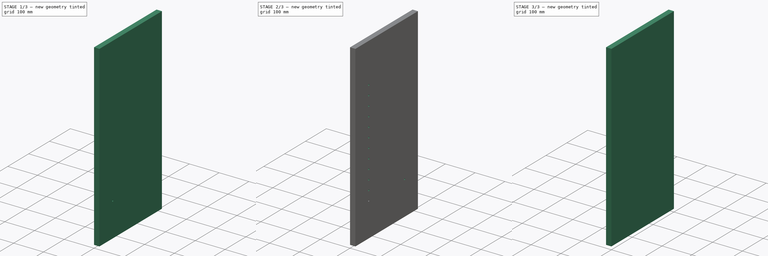
[diagram: build sequence overview — one tinted view per stage of 3, left to right]
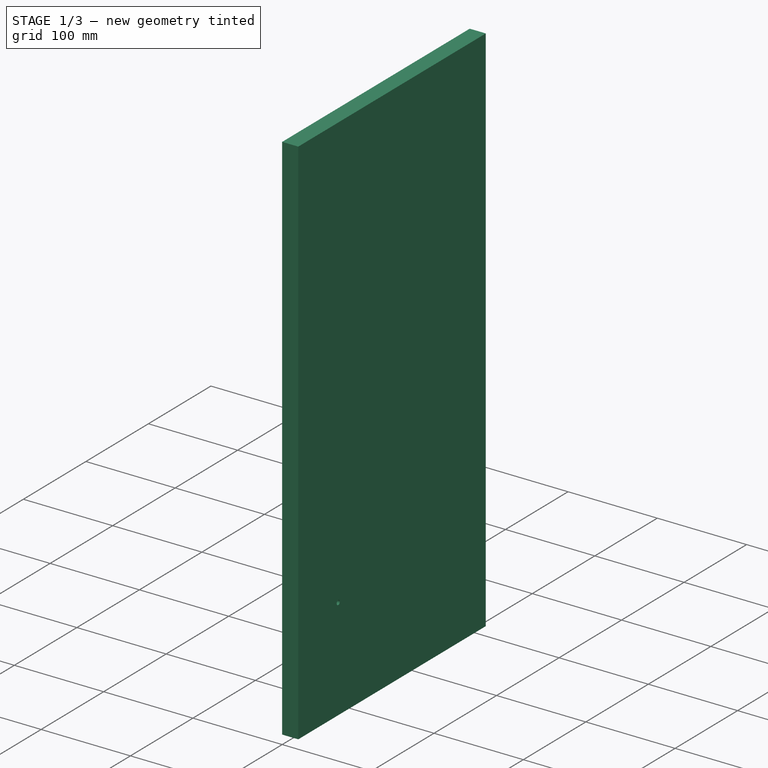
[diagram: stage 1 of 3 — iso view after this stage's code; geometry added in this stage tinted green]
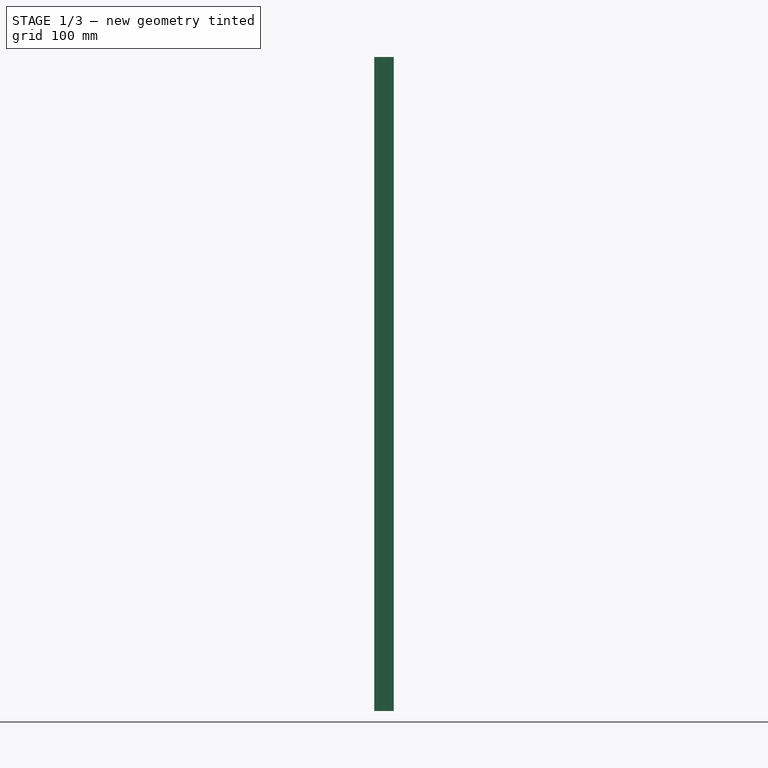
[diagram: stage 1 of 3 — front view after this stage's code; geometry added in this stage tinted green]
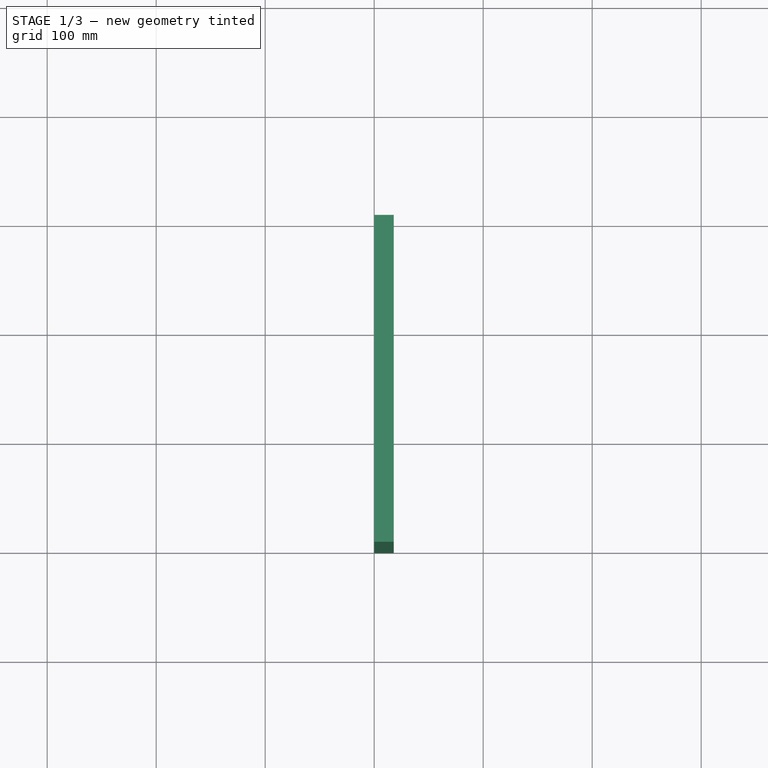
[diagram: stage 1 of 3 — top view after this stage's code; geometry added in this stage tinted green]
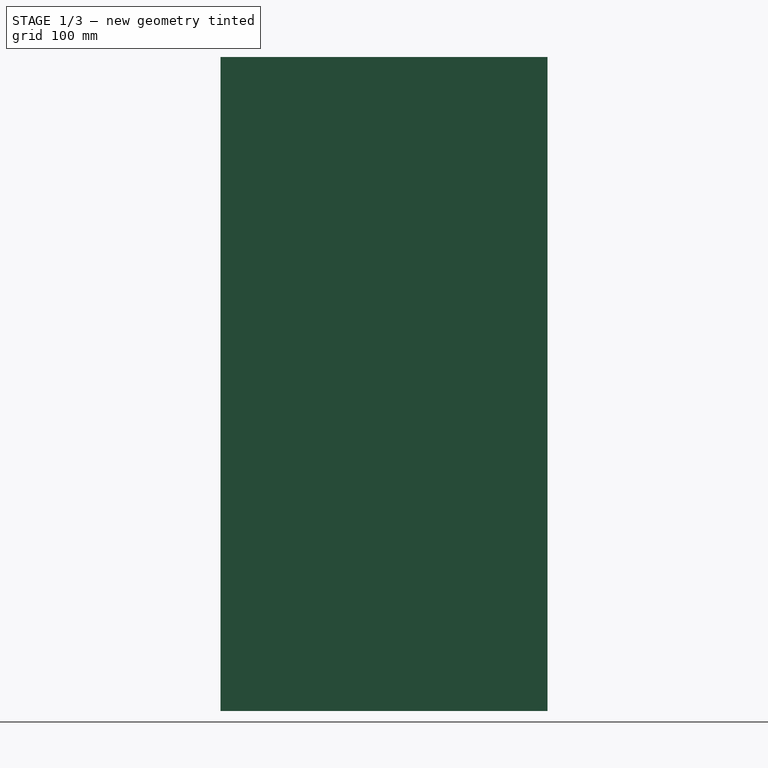
[diagram: stage 1 of 3 — right view after this stage's code; geometry added in this stage tinted green]
FCSTD DOCUMENT  (FreeCAD 1.1R20260325 (Git shallow))
Label: msf083
License: All rights reserved
LicenseURL: https://en.wikipedia.org/wiki/All_rights_reserved
objects: Sketcher::SketchObject×3, App::Point×2, PartDesign::Hole×2, PartDesign::LinearPattern×2, PartDesign::Pad×1, PartDesign::Body×1, Part::FeaturePython×1, App::Part×1, App::VarSet×1
note: 21 computed .brp shape members not serialized (recipe doc carries the construction recipe); baked Part::Feature solids carry a one-line shape summary decoded from their .brp

FEATURE [App::Point] Origin001
  Role = Origin
FEATURE [App::Point] Origin003
  Role = Origin
FEATURE [Sketcher::SketchObject] Sketch  label="Pattern, panel2pad"
  ArcFitTolerance = 1e-06
  AttachmentSupport = -> [YZ_Plane001]
  ExternalTypes = [0]
  FullyConstrained = true
  MakeInternals = false
  MapMode = 5
  Placement = pos=(0,0,0) rot=(0.57735,0.57735,0.57735;2.0944rad)
  _ExternalGeoVersion = 0
  expr: .Constraints.SizeX = <<settings_sides>>.Size_Y
  expr: .Constraints.SizeY = <<settings_sides>>.Size_Z
  sketch-geometry (4):
    g0: LineSegment StartX=0 StartY=600 StartZ=0 EndX=300 EndY=600 EndZ=0
    g1: LineSegment StartX=300 StartY=600 StartZ=0 EndX=300 EndY=0 EndZ=0
    g2: LineSegment StartX=300 StartY=0 StartZ=0 EndX=0 EndY=0 EndZ=0
    g3: LineSegment StartX=0 StartY=0 StartZ=0 EndX=0 EndY=600 EndZ=0
  constraints (11):
    c: Coincident(g0,g1)
    c: Coincident(g1,g2)
    c: Coincident(g2,g3)
    c: Coincident(g3,g0)
    c: Horizontal(g0)
    c: Horizontal(g2)
    c: Vertical(g1)
    c: Vertical(g3)
    c: Coincident(g2,g-1)
    c: DistanceX(g0,g0) = 300  'SizeX'
    c: DistanceY(g3,g3) = 600  'SizeY'
FEATURE [PartDesign::Pad] Pad  label="panel2pad"
  Direction = (1,0,0)
  Length = 18
  Length2 = 10
  Placement = pos=(0,0,0) rot=(1,1,1;2.0944rad)
  Profile = -> Sketch
  Refine = true
  SideType = 0
  Suppressed = false
  Type = 0
  Type2 = 0
  expr: Length = <<settings_sides>>.Size_X
FEATURE [Sketcher::SketchObject] Sketch001
  ArcFitTolerance = 1e-06
  AttachmentSupport = -> [Pad]
  ExternalTypes = [0]
  FullyConstrained = true
  MakeInternals = false
  MapMode = 5
  Placement = pos=(18,-4e-15,2e-15) rot=(0.57735,0.57735,0.57735;2.0944rad)
  _ExternalGeoVersion = 0
  expr: Constraints[0] = <<settings_sides>>.Hole_offset_front
  expr: Constraints[1] = <<settings_sides>>.Hole_offset_bottom
  sketch-geometry (1):
    g0: Circle CenterX=64 CenterY=114 CenterZ=0 NormalX=0 NormalY=0 NormalZ=1 AngleXU=0 Radius=2.5
  constraints (3):
    c: DistanceX(g-1,g0) = 64
    c: DistanceY(g-1,g0) = 114
    c: Diameter(g0) = 5
FEATURE [PartDesign::Hole] Hole
  BaseFeature = -> Pad
  BaseProfileType = 7
  CustomThreadClearance = 0
  Depth = 8
  DepthType = 0
  Diameter = 5
  DrillForDepth = false
  DrillPoint = 0
  DrillPointAngle = 118
  HoleCutCountersinkAngle = 90
  HoleCutCustomValues = false
  HoleCutDepth = 0
  HoleCutDiameter = 10.2
  HoleCutType = 0
  ModelThread = false
  Placement = pos=(0,0,0) rot=(1,1,1;2.0944rad)
  Profile = -> Sketch001
  Refine = true
  Suppressed = false
  Tapered = false
  TaperedAngle = 90
  ThreadClass = 0
  ThreadDepth = 8
  ThreadDepthType = 0
  ThreadDiameter = 5
  ThreadDirection = 0
  ThreadFit = 0
  ThreadSize = 0
  ThreadType = 0
  Threaded = false
  UseCustomThreadClearance = false
  expr: Depth = <<settings_sides>>.Hole_depth
  expr: Diameter = <<settings_sides>>.Hole_diameter
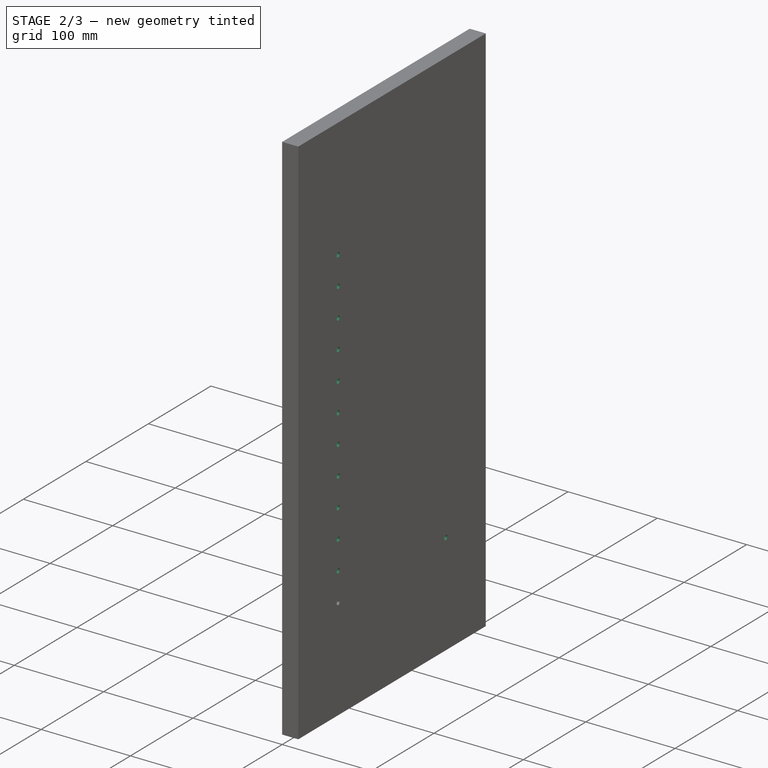
[diagram: stage 2 of 3 — iso view after this stage's code; geometry added in this stage tinted green]
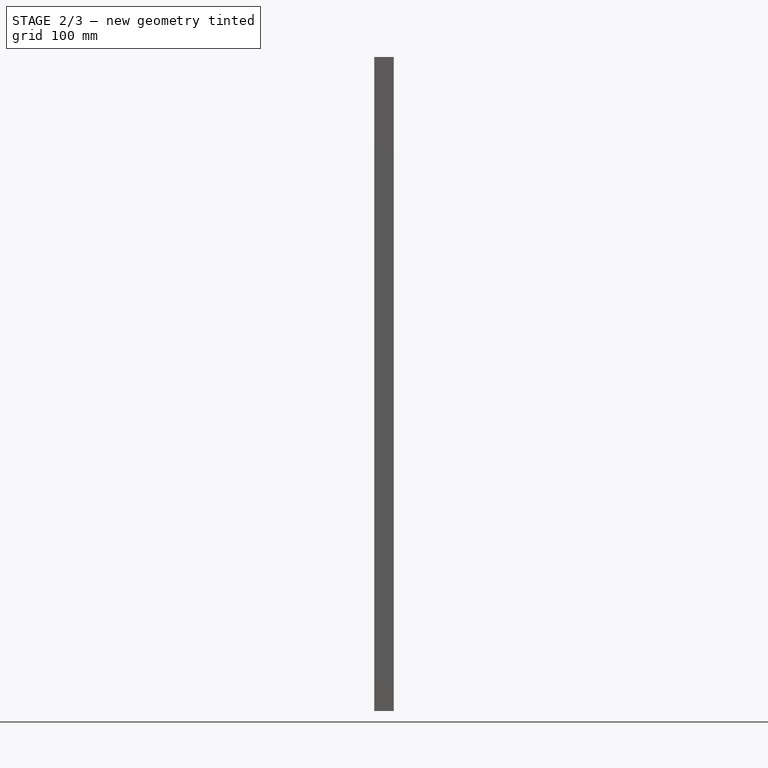
[diagram: stage 2 of 3 — front view after this stage's code; geometry added in this stage tinted green]
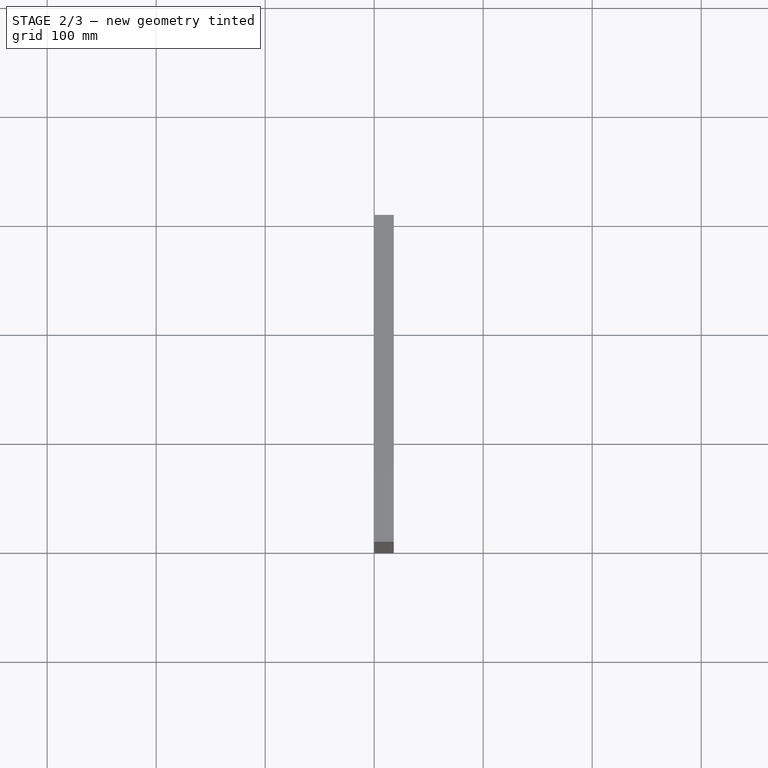
[diagram: stage 2 of 3 — top view after this stage's code; geometry added in this stage tinted green]
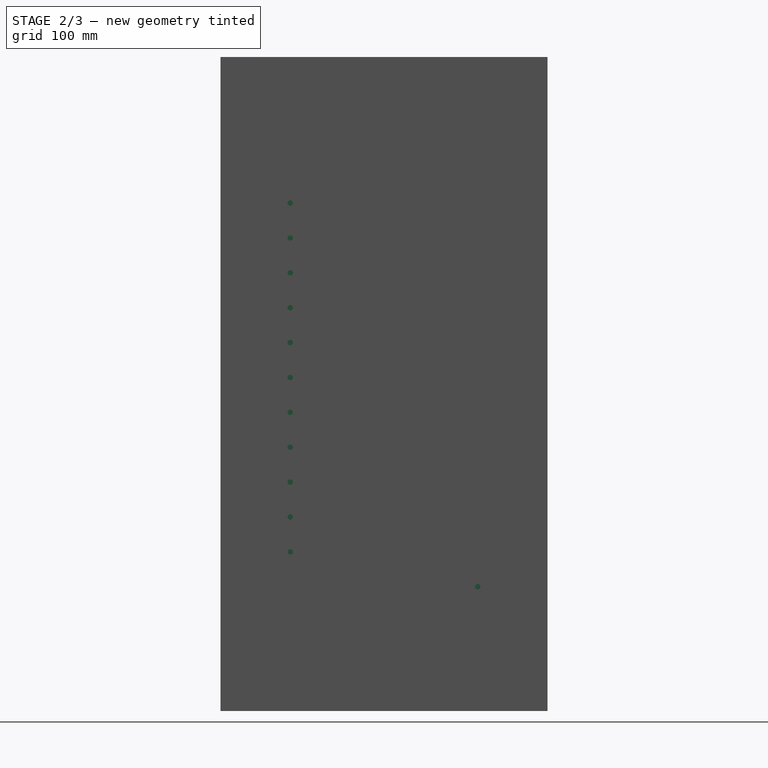
[diagram: stage 2 of 3 — right view after this stage's code; geometry added in this stage tinted green]
FEATURE [PartDesign::LinearPattern] LinearPattern
  BaseFeature = -> Hole
  Direction = -> Z_Axis001
  Direction2 = -> Sketch001 [V_Axis]
  Length = 352
  Length2 = 100
  Mode = 1
  Mode2 = 0
  Occurrences = 12
  Occurrences2 = 1
  Offset = 32
  Offset2 = 100
  Originals = -> [Hole]
  Placement = pos=(0,0,0) rot=(1,1,1;2.0944rad)
  Refine = true
  Reversed2 = false
  SpacingPattern = [32]
  SpacingPattern2 = [0]
  Spacings = [-1,-1,-1,-1,-1,-1,-1,-1,-1,-1,-1]
  Suppressed = false
  TransformMode = 0
  expr: Occurrences = <<settings_sides>>.Holes_number
  expr: Offset = <<settings_sides>>.Hole_offset_between
FEATURE [Sketcher::SketchObject] Sketch002
  ArcFitTolerance = 1e-06
  AttachmentSupport = -> [LinearPattern]
  ExternalTypes = [0]
  FullyConstrained = true
  MakeInternals = false
  MapMode = 5
  Placement = pos=(18,-8e-15,4e-15) rot=(0.57735,0.57735,0.57735;2.0944rad)
  _ExternalGeoVersion = 0
  expr: Constraints[0] = <<settings_sides>>.Hole_offset_back
  expr: Constraints[2] = <<settings_sides>>.Hole_offset_bottom
  sketch-geometry (1):
    g0: Circle CenterX=236 CenterY=114 CenterZ=0 NormalX=0 NormalY=0 NormalZ=1 AngleXU=0 Radius=2.5
  constraints (3):
    c: Distance(g0,g-5) = 64
    c: Diameter(g0) = 5
    c: DistanceY(g-6,g0) = 114
FEATURE [PartDesign::Hole] Hole001
  BaseFeature = -> LinearPattern
  BaseProfileType = 7
  CustomThreadClearance = 0
  Depth = 8
  DepthType = 0
  Diameter = 5
  DrillForDepth = false
  DrillPoint = 0
  DrillPointAngle = 118
  HoleCutCountersinkAngle = 90
  HoleCutCustomValues = false
  HoleCutDepth = 0
  HoleCutDiameter = 0
  HoleCutType = 0
  ModelThread = false
  Placement = pos=(0,0,0) rot=(1,1,1;2.0944rad)
  Profile = -> Sketch002
  Refine = true
  Suppressed = false
  Tapered = false
  TaperedAngle = 90
  ThreadClass = 0
  ThreadDepth = 8
  ThreadDepthType = 0
  ThreadDiameter = 5
  ThreadDirection = 0
  ThreadFit = 0
  ThreadSize = 0
  ThreadType = 0
  Threaded = false
  UseCustomThreadClearance = false
  expr: Depth = <<settings_sides>>.Hole_depth
  expr: Diameter = <<settings_sides>>.Hole_diameter
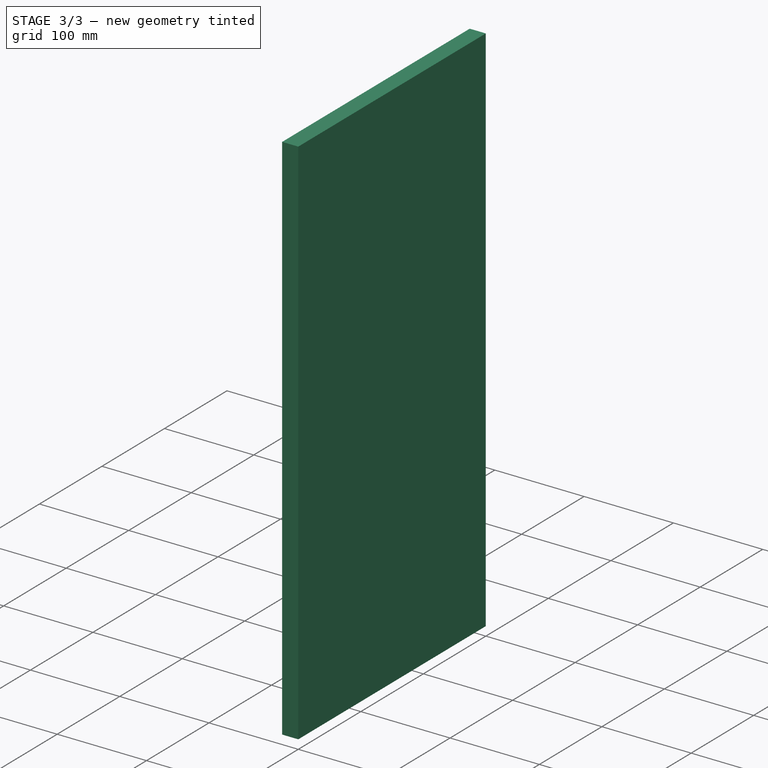
[diagram: stage 3 of 3 — iso view after this stage's code; geometry added in this stage tinted green]
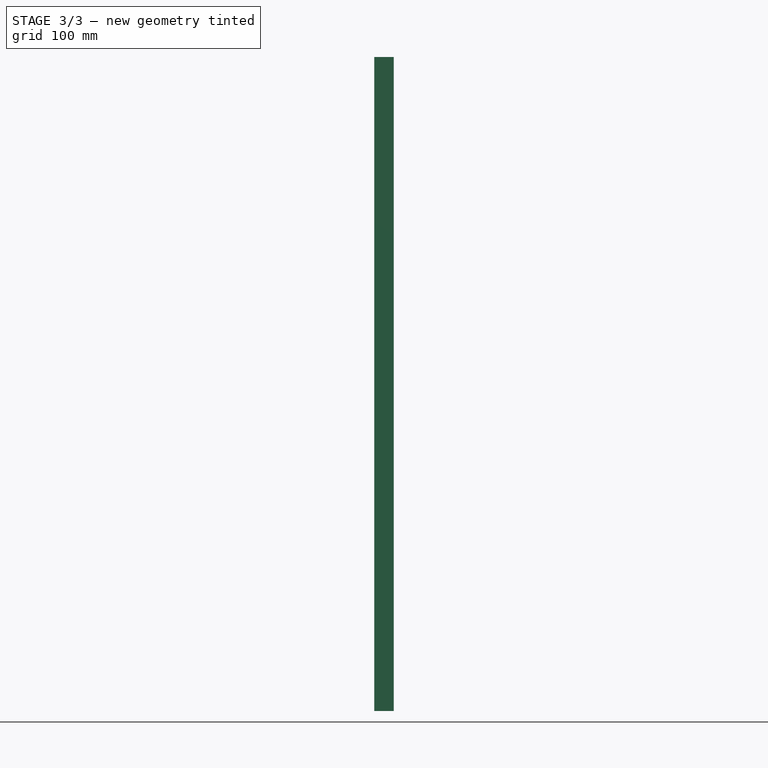
[diagram: stage 3 of 3 — front view after this stage's code; geometry added in this stage tinted green]
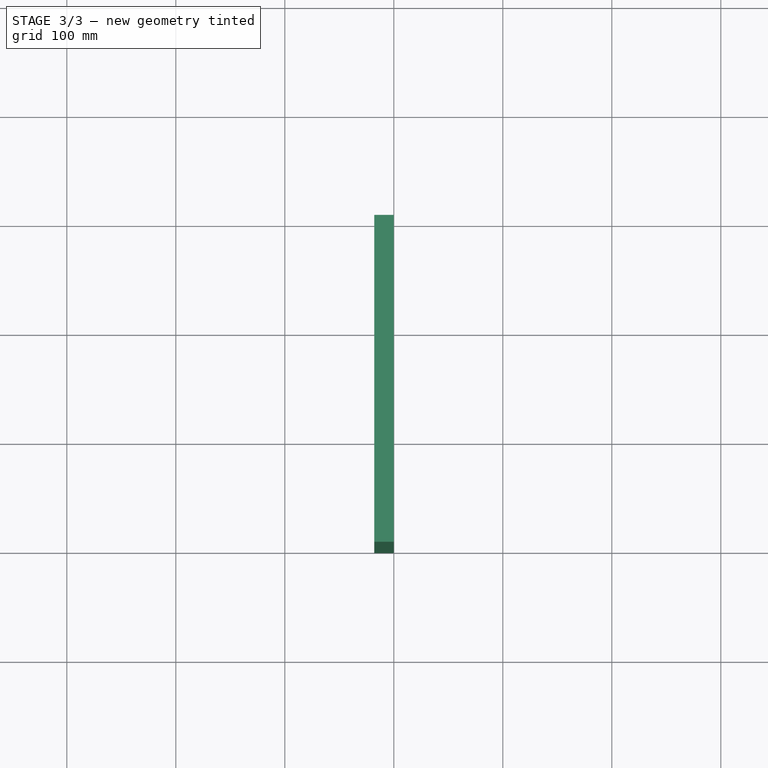
[diagram: stage 3 of 3 — top view after this stage's code; geometry added in this stage tinted green]
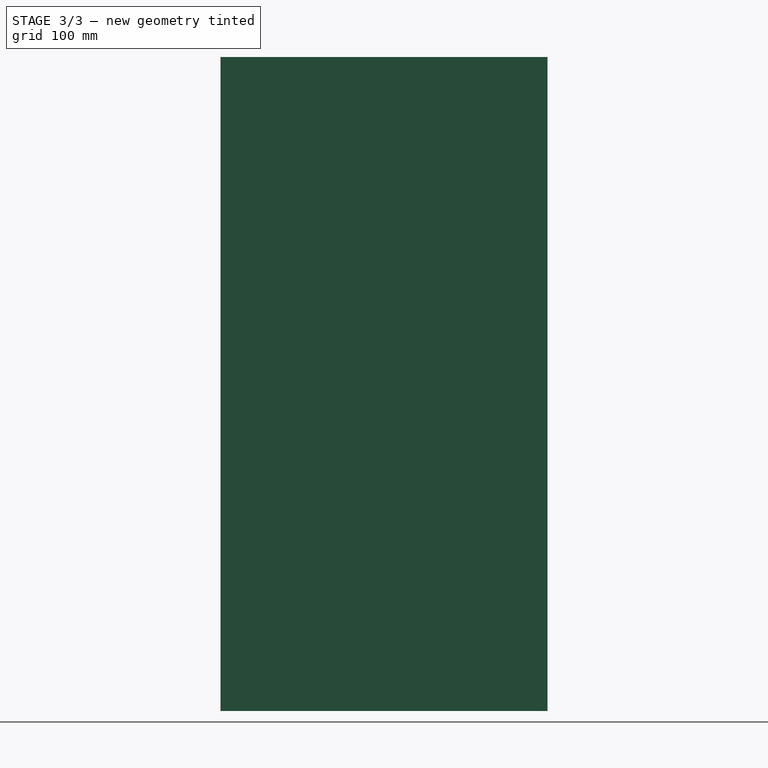
[diagram: stage 3 of 3 — right view after this stage's code; geometry added in this stage tinted green]
FEATURE [PartDesign::LinearPattern] LinearPattern001
  BaseFeature = -> Hole001
  Direction = -> Z_Axis001
  Direction2 = -> Sketch002 [V_Axis]
  Length = 352
  Length2 = 100
  Mode = 1
  Mode2 = 0
  Occurrences = 12
  Occurrences2 = 1
  Offset = 32
  Offset2 = 100
  Originals = -> [Hole001]
  Placement = pos=(0,0,0) rot=(1,1,1;2.0944rad)
  Refine = true
  Reversed2 = false
  SpacingPattern = [32]
  SpacingPattern2 = [0]
  Spacings = [-1,-1,-1,-1,-1,-1,-1,-1,-1,-1,-1]
  Suppressed = false
  TransformMode = 0
  expr: Occurrences = <<settings_sides>>.Holes_number
  expr: Offset = <<settings_sides>>.Hole_offset_between
FEATURE [PartDesign::Body] Body  label="Body, panel2pad"
  AllowCompound = true
  Group = -> [Sketch,Pad,Sketch001,Hole,LinearPattern,Sketch002,Hole001,LinearPattern001]
  Origin = -> Origin002
  Tip = -> LinearPattern001
FEATURE [Part::FeaturePython] Clone  label="Clone, panel2pad"  # Draft clone (typed FeaturePython)
  AttacherType = Attacher::AttachEngine3D
  ForceCompound = false
  Fuse = false
  Objects = -> [Body]
  Placement = pos=(500,0,0) rot=(0,0,1;0rad)
  Scale = (-1,1,1)
FEATURE [App::Part] Part  label="Part, panel2pad"
  Group = -> [Body,Clone]
  Origin = -> Origin
FEATURE [App::VarSet] VarSet  label="settings_sides"
  Hole_depth = 8
  Hole_diameter = 5
  Hole_min_offset_top = 114
  Hole_offset_back = 64
  Hole_offset_between = 32
  Hole_offset_bottom = 114
  Hole_offset_front = 64
  Holes_number = 12
  Holes_space = 27
  Size_X = 18
  Size_Y = 300
  Size_Z = 600
  expr: Holes_number = floor((Size_Z - Hole_min_offset_top - Hole_offset_bottom + Holes_space) / (Hole_diameter + Holes_space))
  expr: Holes_space = Hole_offset_between - Hole_diameter
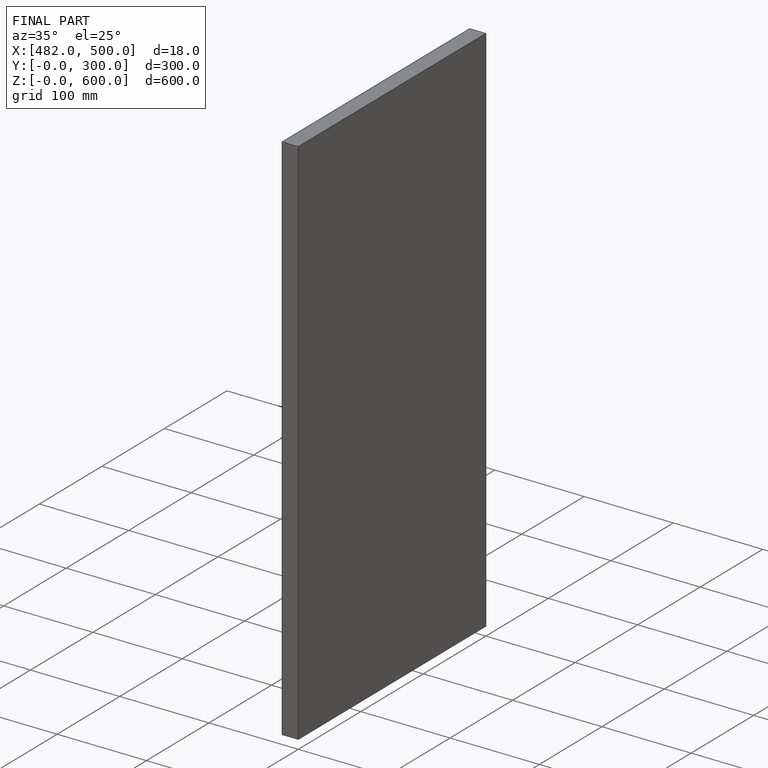
[diagram: finished part — iso view with bounding-box wireframe]
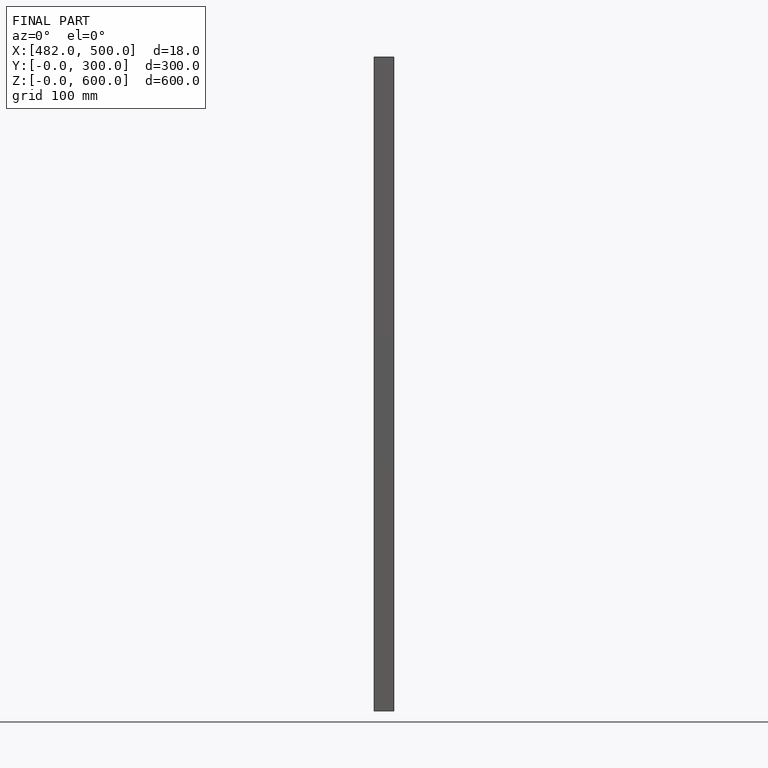
[diagram: finished part — front view with bounding-box wireframe]
